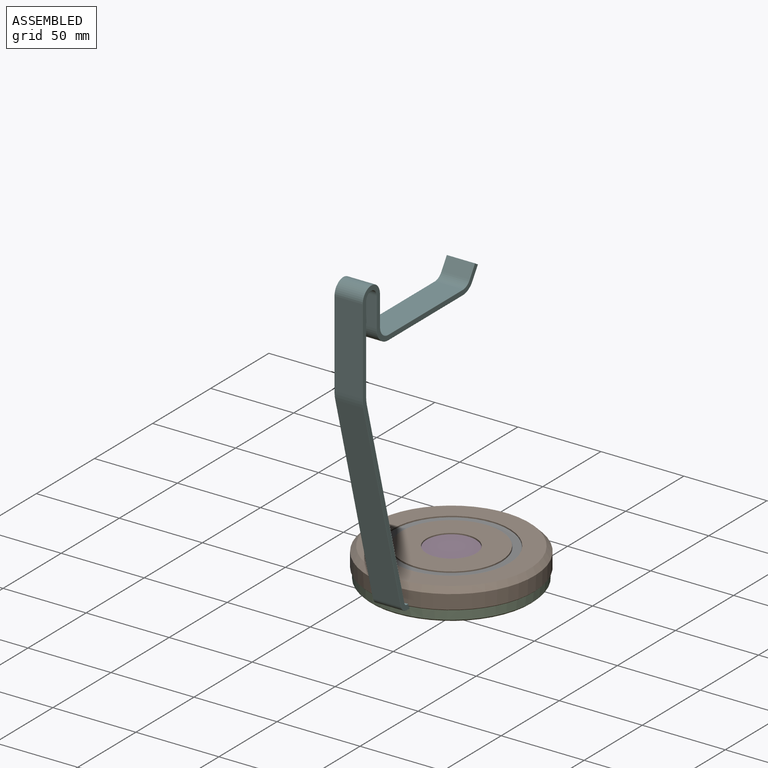
[diagram: assembled view]
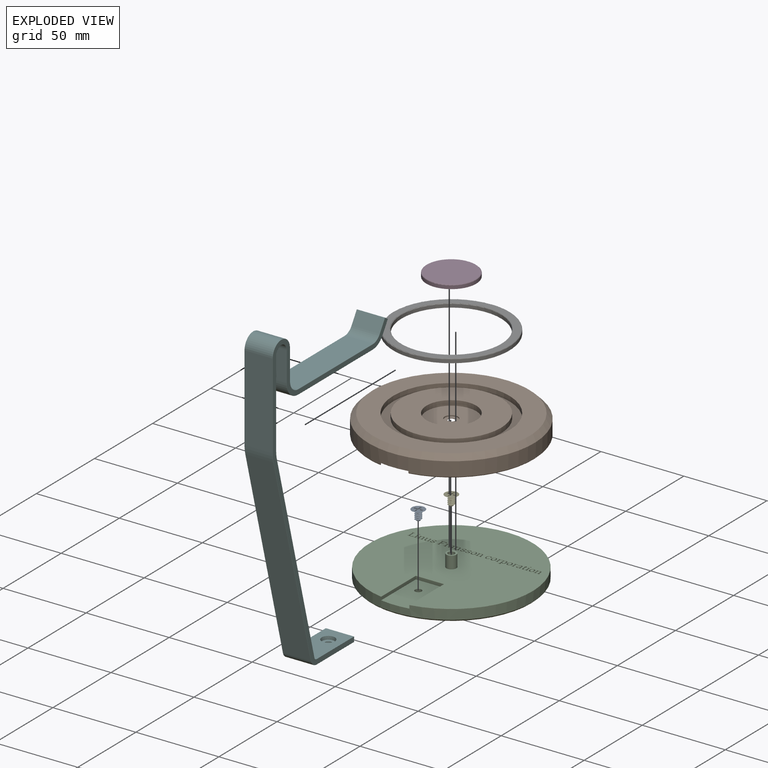
[diagram: exploded view]
GUIDED TOUR — MATED ASSEMBLY (Onshape document f17010e8f5130e023b31298c, AutoMate assembly f17010e8f5130e023b31298c_334e94c1dd902689a71845d5_8bb559356ea33c52fdeffb73_default)

This assembly has 7 components, labeled P0..P6 below (a component is one placed occurrence of a part; the same part can appear more than once), held together by 6 mates. A mate is a constraint between two components; its type names the relative motion it leaves free:
  FASTENED — locks the two components together rigidly (no relative motion).
Axis/direction vectors are unit vectors and 'through' points are millimeter coordinates, both in the assembly's world frame.

MATES
  1. FASTENED "Fastened 3": P2 <-> P1, direction (0.000, 0.000, -1.000) through (0.00, 0.00, 14.50) mm
  2. FASTENED "Fastened 1": P5 <-> P2, direction (0.000, 0.000, -1.000) through (0.00, -28.43, 5.00) mm
  3. FASTENED "Fastened 2": P1 <-> P6, direction (0.000, 0.000, 1.000) through (0.00, 0.00, 15.50) mm
  4. FASTENED "Fastened 6": P4 <-> P2, direction (0.000, 0.000, -1.000) through (0.00, 0.00, 9.50) mm
  5. FASTENED "Fastened 5": P0 <-> P2, direction (0.000, 0.000, -1.000) through (0.00, -28.43, 2.00) mm
  6. FASTENED "Fastened 4": P1 <-> P3, direction (0.000, 0.000, 1.000) through (0.00, 0.00, 15.50) mm

ASSEMBLY ORDER
  1. P2 — the base component [order verified]
  2. P0 [order verified]
  3. P4 [order verified]
  4. P1 [order verified]
  5. P6 [order verified]
  6. P3 [order verified]
  7. P5 [order verified]
(P0, P3, P4, P6 verified with a relaxed clearance tolerance: the source model stores slight part interference there.)
Order-tag legend:
  [order verified] — this step's position reverses a verified removal order: the component was checked to insert without passing through the ones already placed.

Of the 7 components, 1 carries the full construction recipe — the FeatureScript program that regenerates the part's solid from scratch; the rest are supplied as boundary geometry only.
Each toured component is shown spotlighted twice — in the assembled view, then in the exploded view, where a leader line traces a displaced component back to its assembled socket (saturated green if recipe-attached, orange if geometry-only; every other component desaturated gray) — followed by its recipe or geometry summary and the mates that hold it.
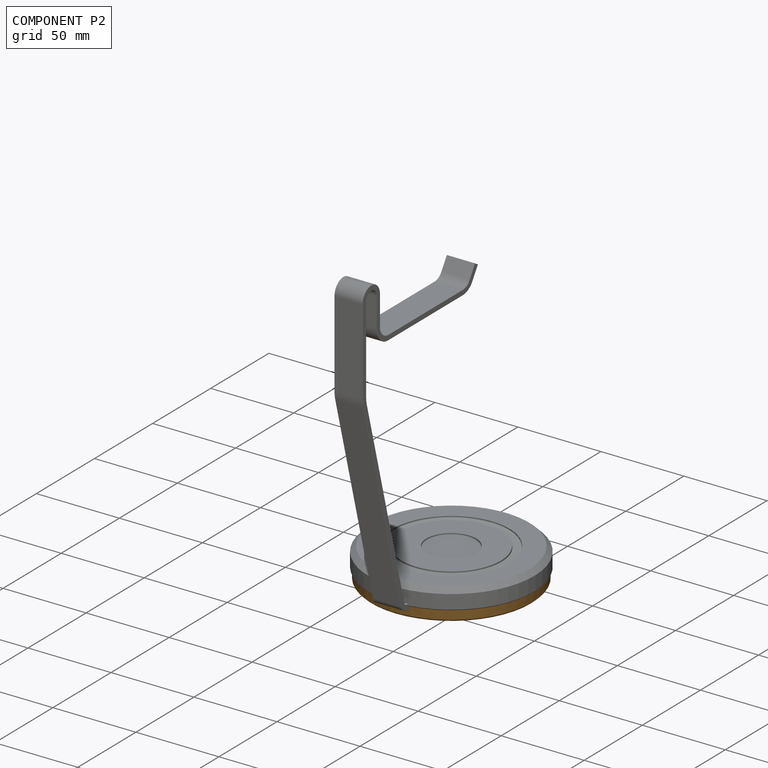
[diagram: component P2 — assembled]
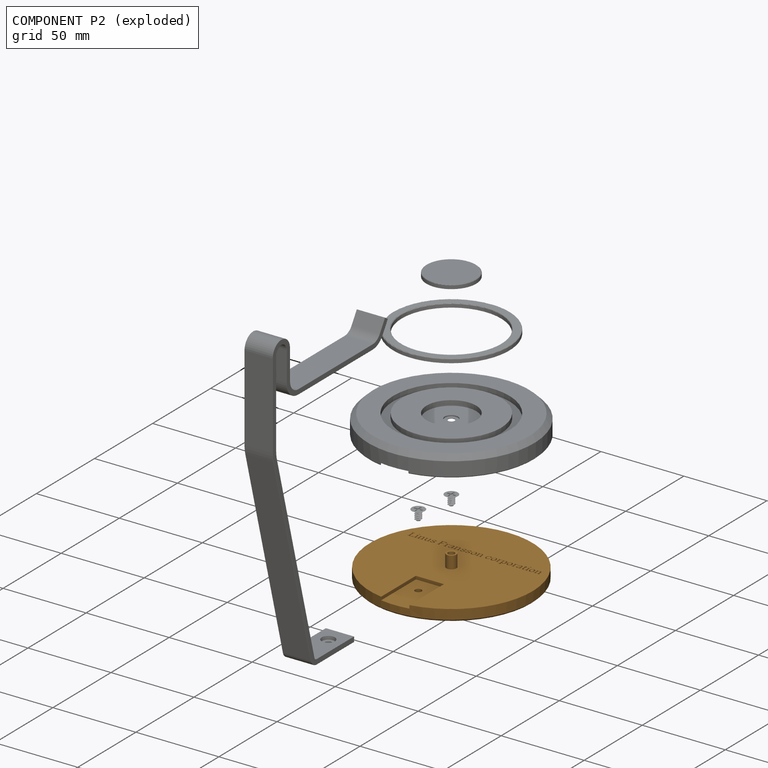
[diagram: component P2 — exploded]
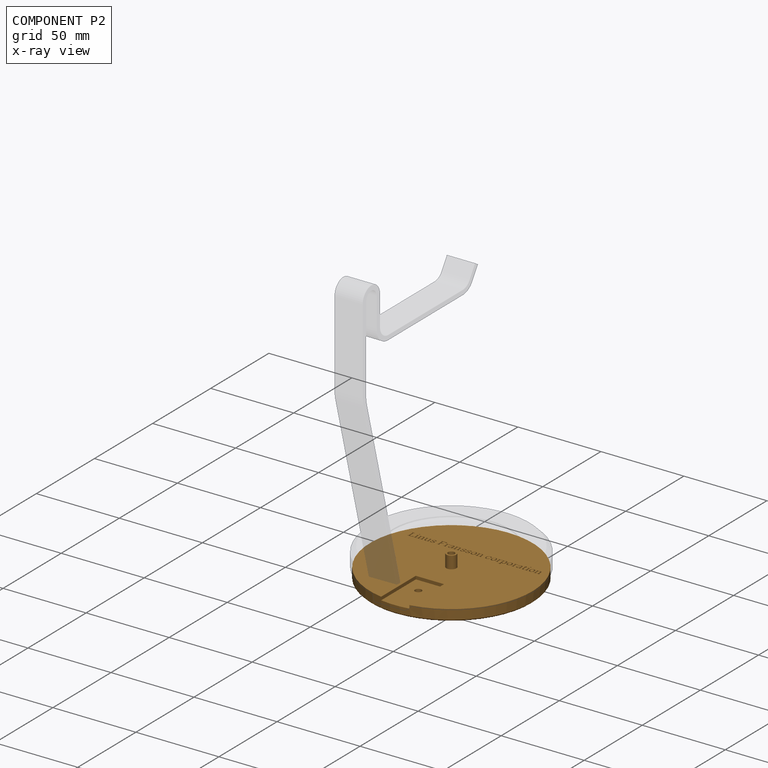
[diagram: component P2 — x-ray view]
COMPONENT P2 — geometry summary (no construction recipe available for this part):
  bounding box: 106.1 x 105.3 x 14.5 mm
  B-rep topology: 1 solid, 1108 faces, 5408 edges
  volume: 51593 mm^3 (32% of its bounding box)
Held by: FASTENED mate "Fastened 3" to P1; FASTENED mate "Fastened 1" to P5; FASTENED mate "Fastened 6" to P4; FASTENED mate "Fastened 5" to P0.
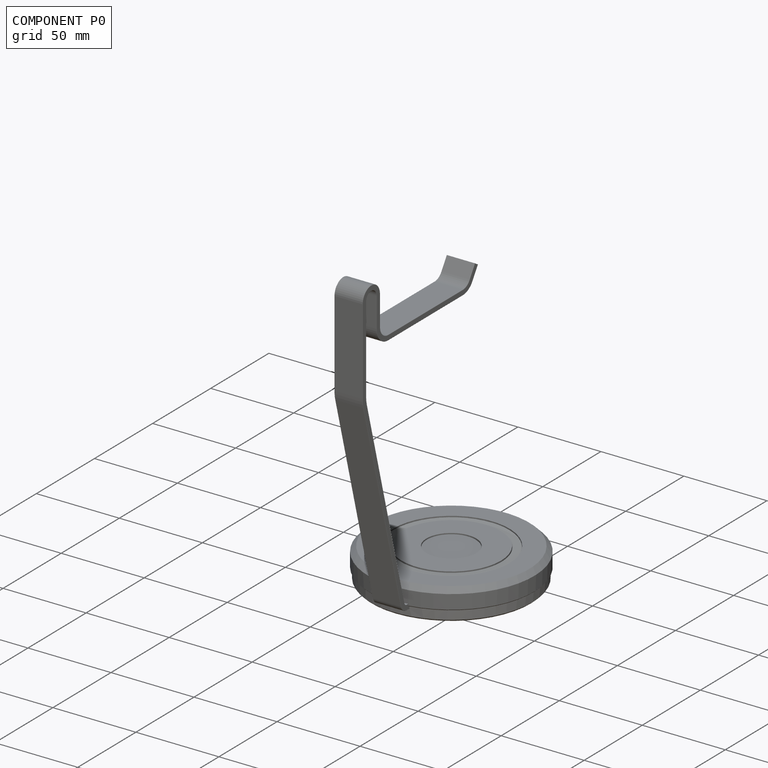
[diagram: component P0 — assembled]
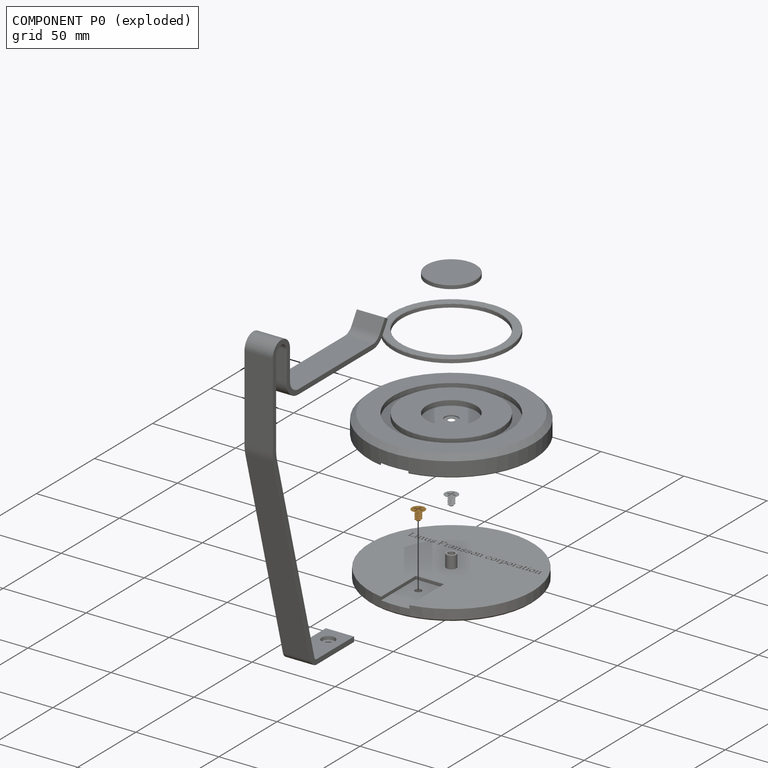
[diagram: component P0 — exploded]
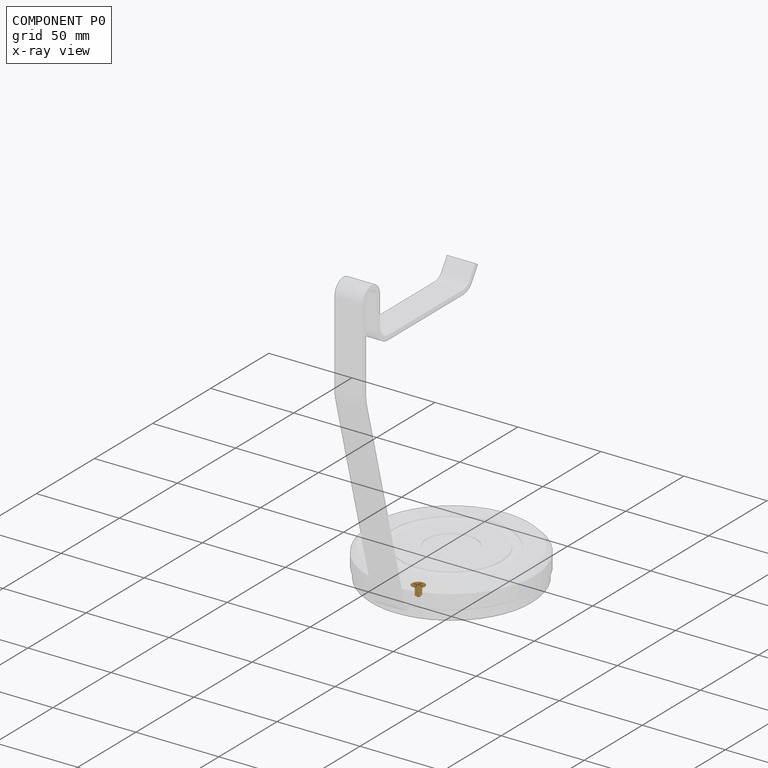
[diagram: component P0 — x-ray view]
COMPONENT P0 — geometry summary (no construction recipe available for this part):
  bounding box: 7.8 x 7.8 x 6.0 mm
  B-rep topology: 1 solid, 27 faces, 142 edges
  volume: 58 mm^3 (16% of its bounding box)
Held by: FASTENED mate "Fastened 5" to P2.
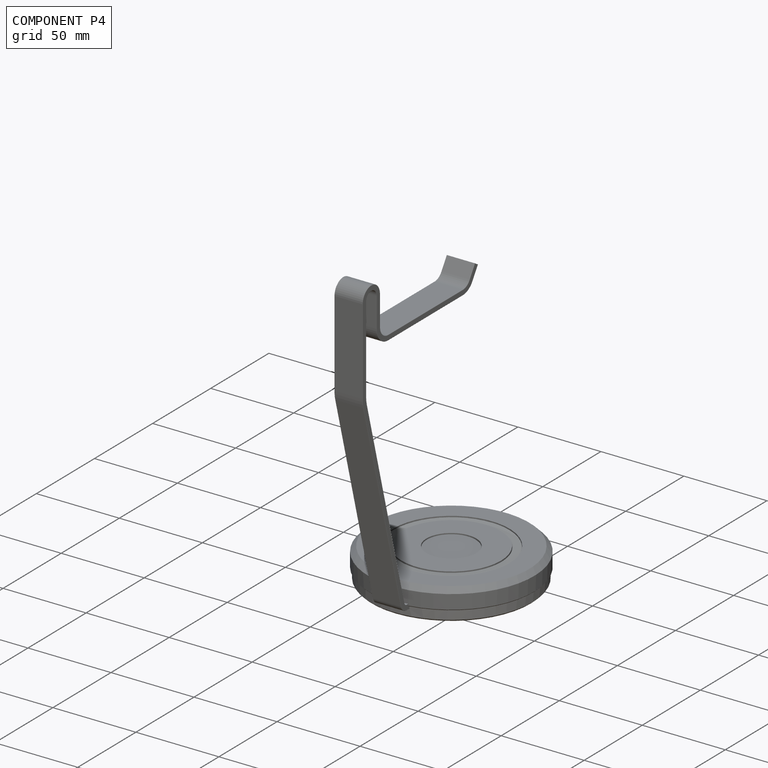
[diagram: component P4 — assembled]
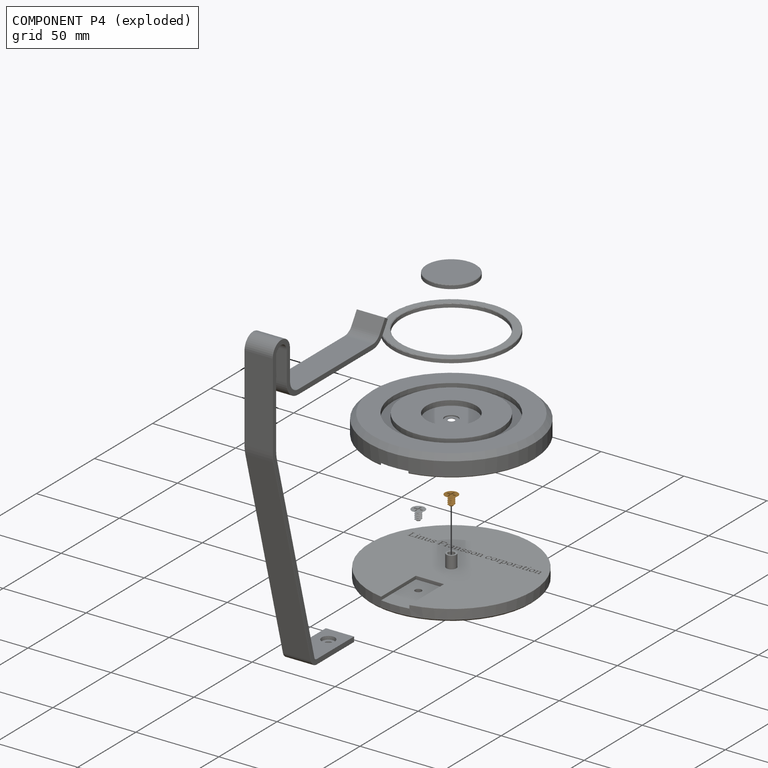
[diagram: component P4 — exploded]
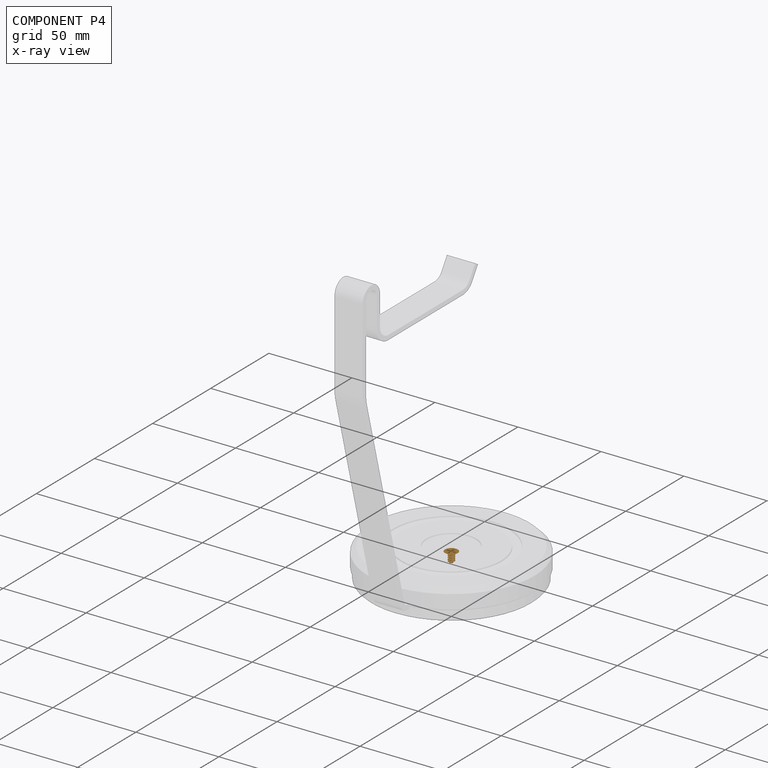
[diagram: component P4 — x-ray view]
COMPONENT P4 — geometry summary (no construction recipe available for this part):
  bounding box: 7.8 x 7.8 x 6.0 mm
  B-rep topology: 1 solid, 27 faces, 142 edges
  volume: 58 mm^3 (16% of its bounding box)
Held by: FASTENED mate "Fastened 6" to P2.
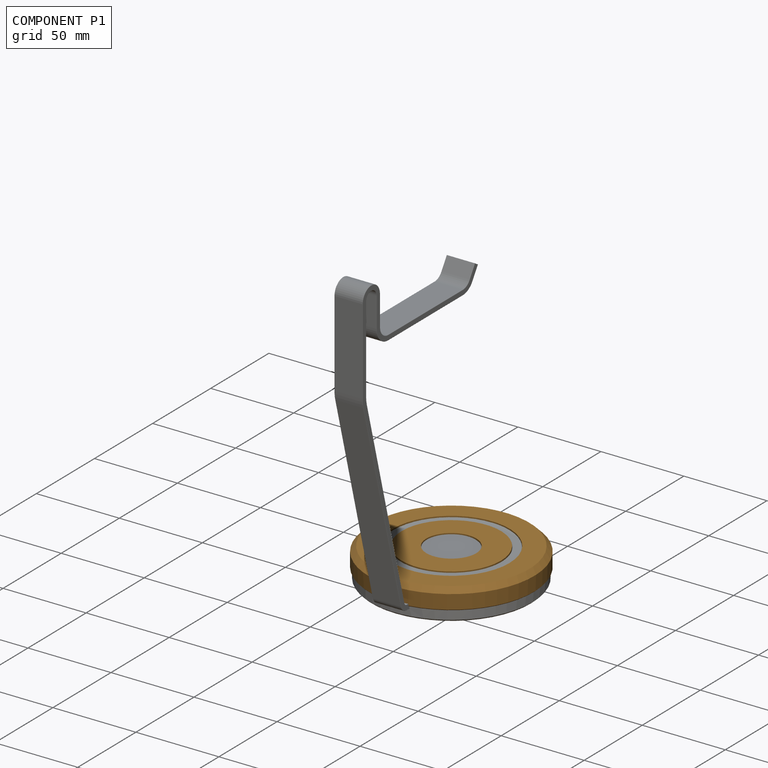
[diagram: component P1 — assembled]
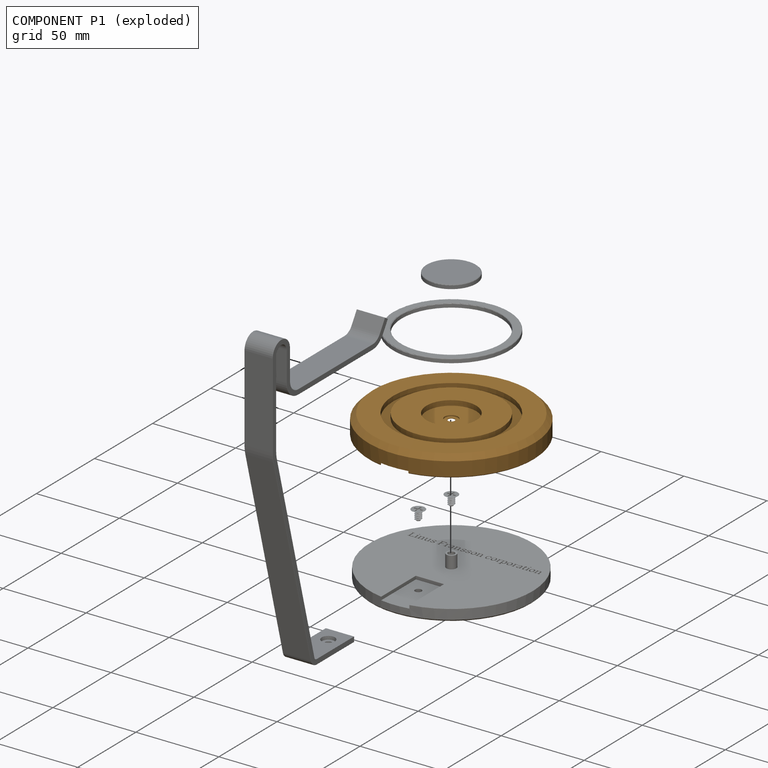
[diagram: component P1 — exploded]
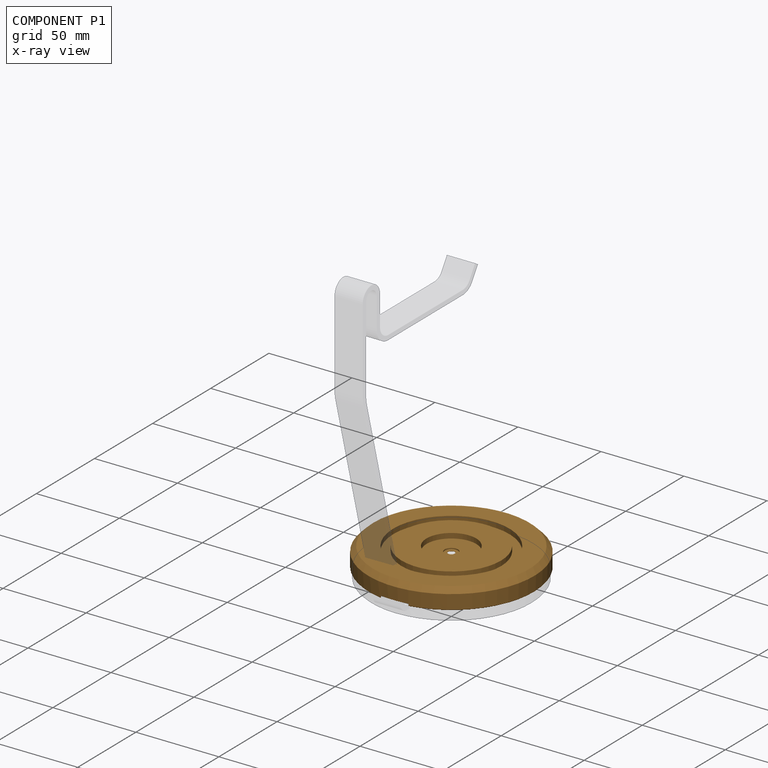
[diagram: component P1 — x-ray view]
COMPONENT P1 — geometry summary (no construction recipe available for this part):
  bounding box: 100.0 x 100.0 x 12.0 mm
  B-rep topology: 1 solid, 26 faces, 100 edges
  volume: 12188 mm^3 (10% of its bounding box)
  symmetry: 6-fold rotationally symmetric about the z axis; mirror-symmetric across its x mid-plane, y mid-plane
Held by: FASTENED mate "Fastened 3" to P2; FASTENED mate "Fastened 2" to P6; FASTENED mate "Fastened 4" to P3.
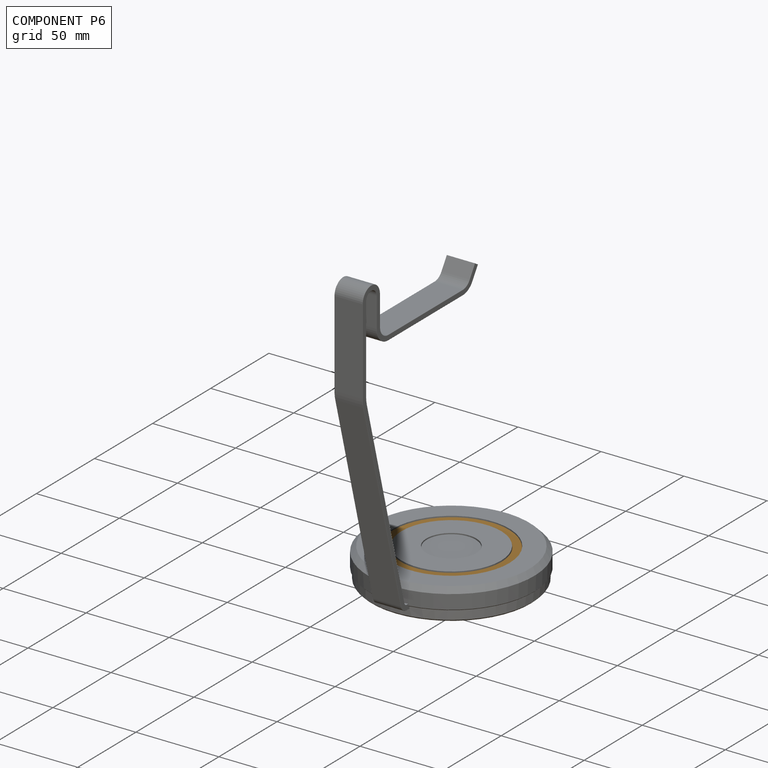
[diagram: component P6 — assembled]
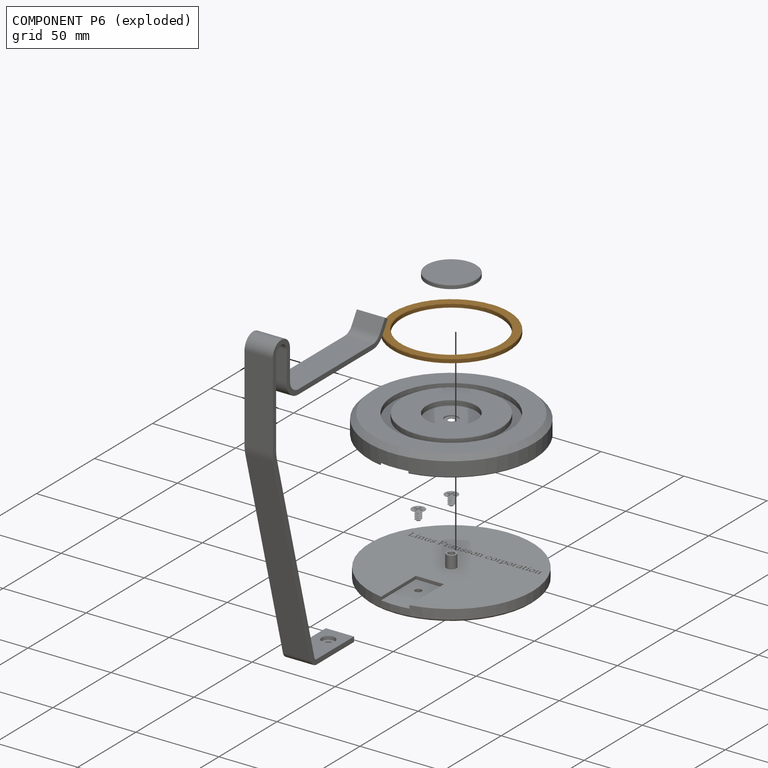
[diagram: component P6 — exploded]
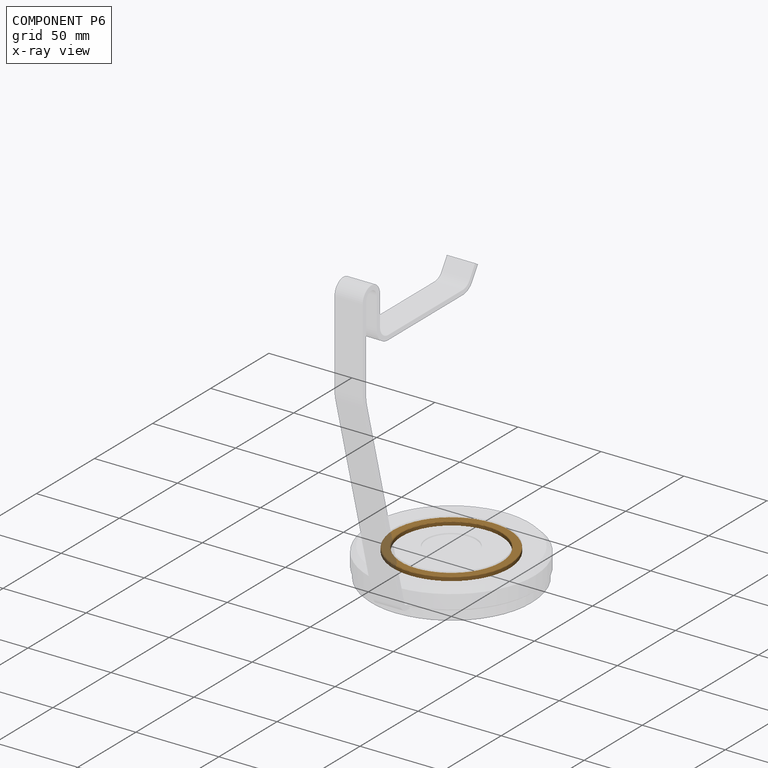
[diagram: component P6 — x-ray view]
COMPONENT P6 — geometry summary (no construction recipe available for this part):
  bounding box: 75.8 x 75.8 x 2.5 mm
  B-rep topology: 1 solid, 6 faces, 20 edges
  volume: 2531 mm^3 (18% of its bounding box)
  symmetry: 2-fold rotationally symmetric about the x axis; 2-fold rotationally symmetric about the y axis; revolution-symmetric about the z axis through its bounding-box center; mirror-symmetric across its x mid-plane, y mid-plane, z mid-plane
Held by: FASTENED mate "Fastened 2" to P1.
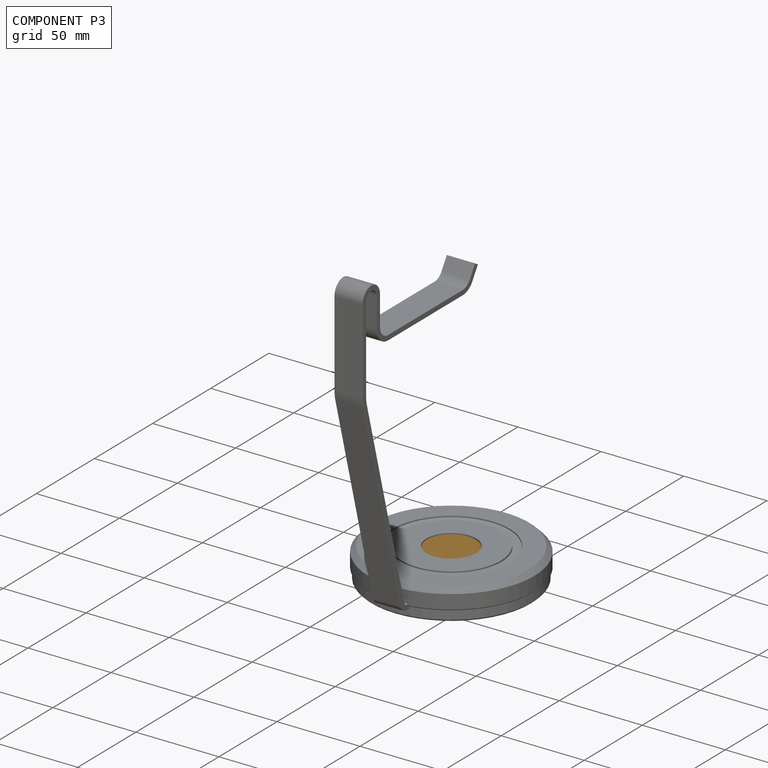
[diagram: component P3 — assembled]
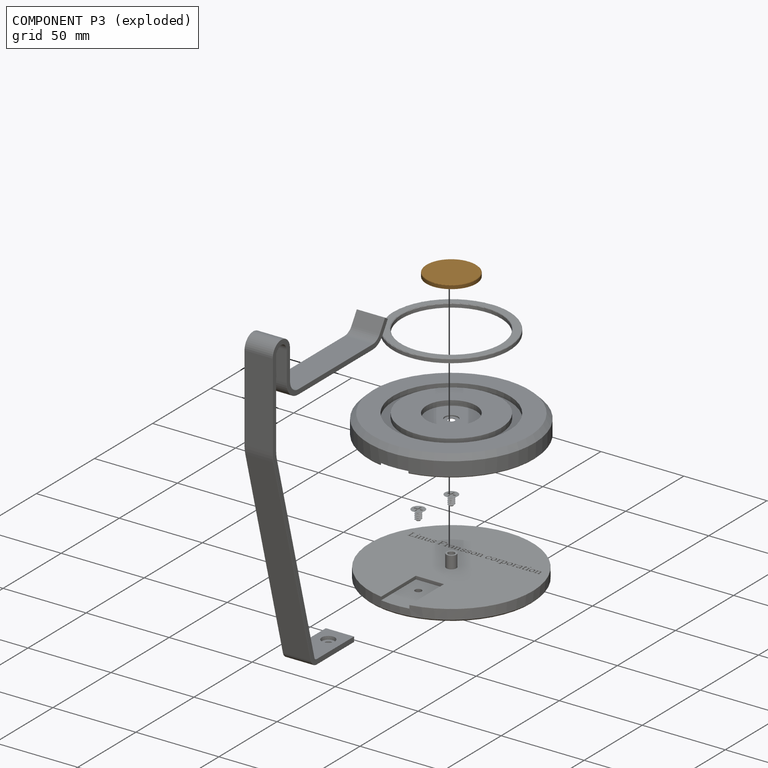
[diagram: component P3 — exploded]
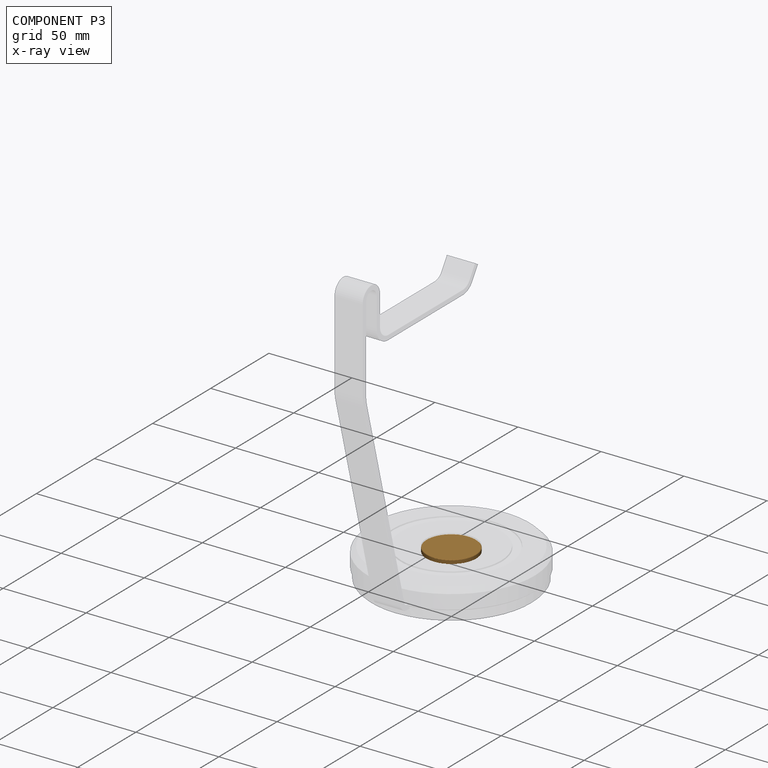
[diagram: component P3 — x-ray view]
COMPONENT P3 — geometry summary (no construction recipe available for this part):
  bounding box: 32.5 x 32.5 x 2.5 mm
  B-rep topology: 1 solid, 4 faces, 10 edges
  volume: 1762 mm^3 (67% of its bounding box)
  symmetry: revolution-symmetric about the z axis through its bounding-box center; mirror-symmetric across its x mid-plane, y mid-plane
Held by: FASTENED mate "Fastened 4" to P1.
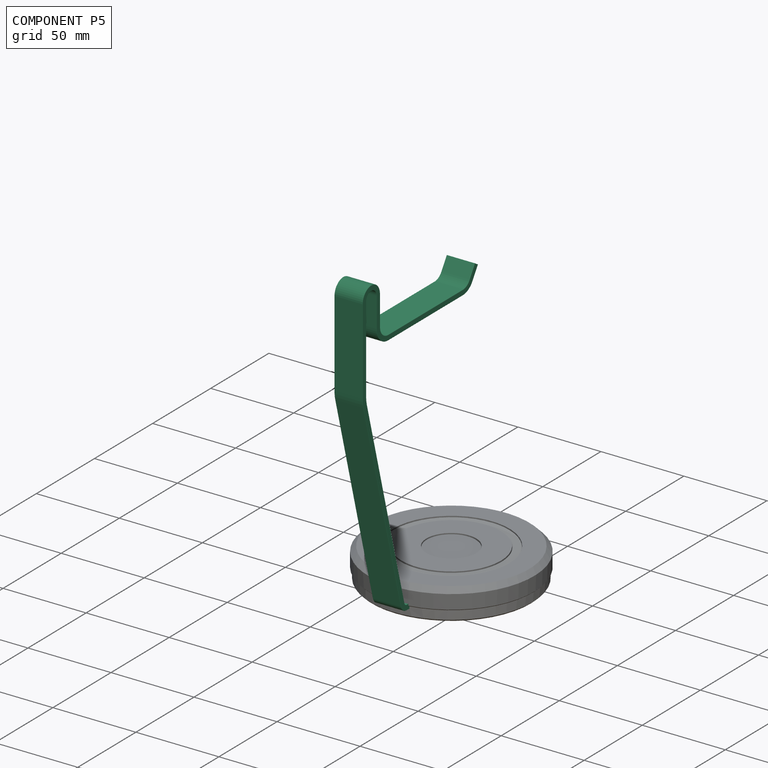
[diagram: component P5 — assembled]
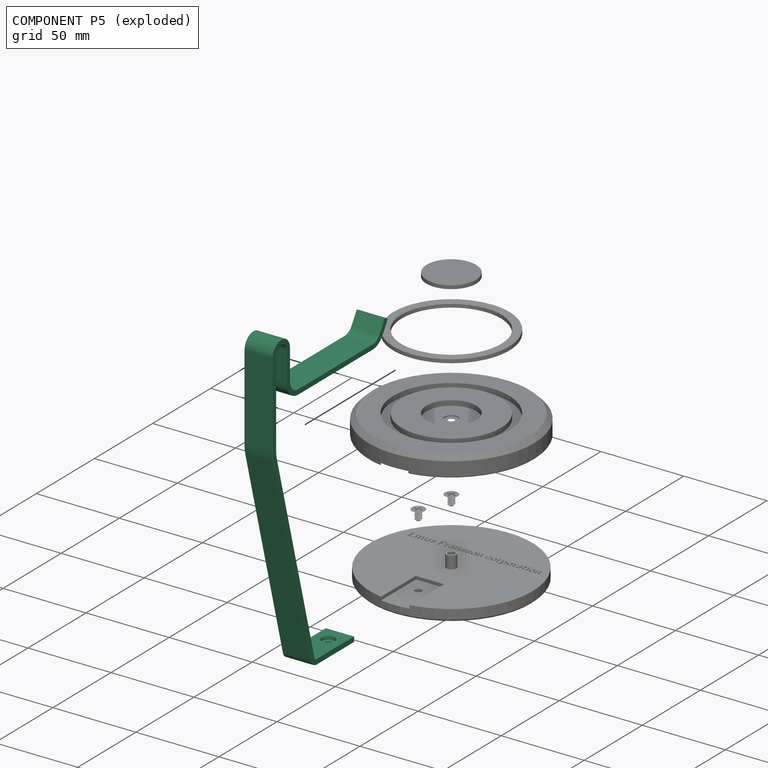
[diagram: component P5 — exploded]
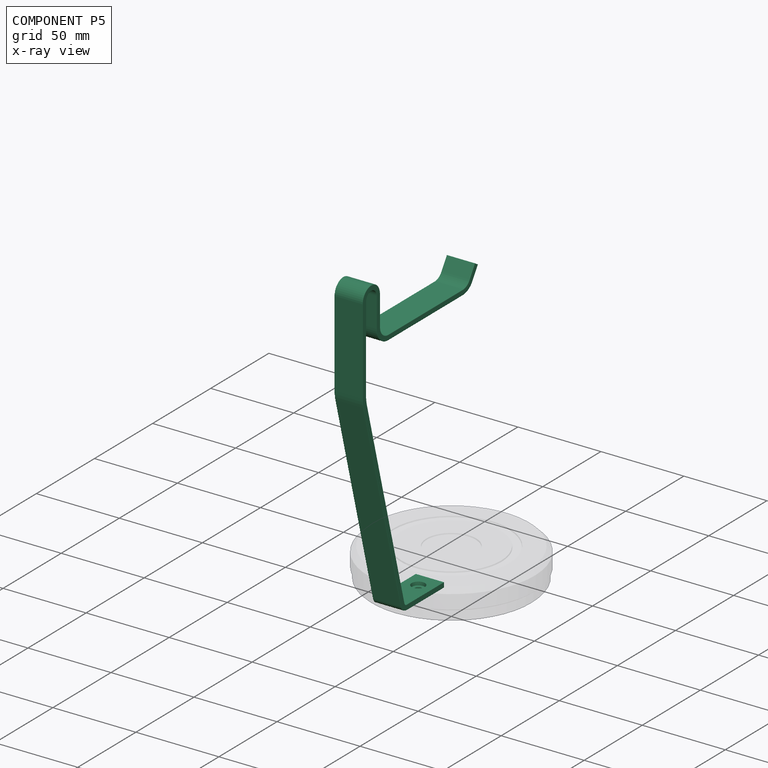
[diagram: component P5 — x-ray view]
COMPONENT P5 — recipe-attached (CADFS 00171755, mesh-verified: the recipe's output STEP matches this component's geometry to below the mesh-comparison resolution (tessellation chordal tolerance ~0.32 mm)).
Held by: FASTENED mate "Fastened 1" to P2.
Construction recipe (FeatureScript — the CAD program that rebuilds this solid; sketch coordinates are in the units given by the * unit suffixes, e.g. mm):

FeatureScript 1511;
import(path : "onshape/std/geometry.fs", version : "1511.0");
import(path : "onshape/std/common.fs", version : "1511.0");
const mm = millimeter;
const VERTEX = EntityType.VERTEX;
const EDGE = EntityType.EDGE;
const FACE = EntityType.FACE;
const BODY = EntityType.BODY;
function v(x, y){return vector(x, y);}
function OD(order){return orderDisambiguation(order);}
function OSD(set){return originalSetDisambiguation(set);}
function TD(topology){return topologyDisambiguation(topology);}
function TDD(query){return trueDependencyDisambiguation(query);}
function sQuery(a, b, c) {return sketchEntityQuery(a, b, c);}

annotation { "Feature Type Name" : "Feature", "Feature Type Description" : "" }
export const myFeature = defineFeature(function(context is Context, id is Id, definition is map)
    precondition{}
    {
        {
            var Q0;
            Q0=qCreatedBy(makeId("Front.planeOp"),FACE);
            var sketch = newSketch(context, id + "F0", { "sketchPlane" : qUnion([Q0])});
            skLineSegment(sketch, "E0", {"start": v(-77.45, -70.7) * mm, "end": v(-45.28, -70.7) * mm});
            skLineSegment(sketch, "E1", {"start": v(-40.46, -67) * mm, "end": v(-8.1, 53.55) * mm});
            skLineSegment(sketch, "E2", {"start": v(-7.41, 58.74) * mm, "end": v(-7.41, 110.3) * mm});
            skLineSegment(sketch, "E3", {"start": v(-7.41, 110.3) * mm, "end": v(-10.41, 110.3) * mm});
            skLineSegment(sketch, "E4", {"start": v(-22.41, 110.3) * mm, "end": v(-22.41, 92.3) * mm});
            skLineSegment(sketch, "E5", {"start": v(-29.41, 85.3) * mm, "end": v(-93.57, 85.3) * mm});
            skPoint(sketch, "E6.visualSharp", {"position": v(-41.45, -70.7) * mm});
            skArc(sketch, "E6.filletArc", {"start": v(-45.28, -70.7) * mm, "mid": v(-42.24, -69.68) * mm, "end": v(-40.46, -67) * mm});
            skArc(sketch, "E7", {"start": v(-7.41, 110.3) * mm, "mid": v(-14.91, 117.8) * mm, "end": v(-22.41, 110.3) * mm});
            skPoint(sketch, "E8.visualSharp", {"position": v(-7.41, 56.1) * mm});
            skArc(sketch, "E8.filletArc", {"start": v(-8.1, 53.55) * mm, "mid": v(-7.59, 56.12) * mm, "end": v(-7.41, 58.74) * mm});
            skPoint(sketch, "E9.visualSharp", {"position": v(-22.41, 85.3) * mm});
            skArc(sketch, "E9.filletArc", {"start": v(-29.41, 85.3) * mm, "mid": v(-24.46, 87.34) * mm, "end": v(-22.41, 92.3) * mm});
            skLineSegment(sketch, "E10", {"start": v(-99.48, 88.53) * mm, "end": v(-104.06, 95.74) * mm});
            skPoint(sketch, "E11.visualSharp", {"position": v(-97.41, 85.3) * mm});
            skArc(sketch, "E11.filletArc", {"start": v(-99.48, 88.53) * mm, "mid": v(-96.94, 86.15) * mm, "end": v(-93.57, 85.3) * mm});
            skLineSegment(sketch, "E12", {"start": v(-77.45, -70.7) * mm, "end": v(-77.45, -67.7) * mm});
            skLineSegment(sketch, "E13", {"start": v(-77.45, -67.7) * mm, "end": v(-45.28, -67.7) * mm});
            skLineSegment(sketch, "E14", {"start": v(-43.35, -66.23) * mm, "end": v(-11.1, 53.95) * mm});
            skLineSegment(sketch, "E15", {"start": v(-10.41, 59.13) * mm, "end": v(-10.41, 111.1) * mm});
            skLineSegment(sketch, "E16", {"start": v(-19.41, 92.3) * mm, "end": v(-19.41, 110.3) * mm});
            skArc(sketch, "E17", {"start": v(-10.41, 111.1) * mm, "mid": v(-15.28, 114.8) * mm, "end": v(-19.41, 110.3) * mm});
            skLineSegment(sketch, "E18", {"start": v(-93.57, 82.3) * mm, "end": v(-29.41, 82.3) * mm});
            skArc(sketch, "E19", {"start": v(-29.41, 82.3) * mm, "mid": v(-22.34, 85.22) * mm, "end": v(-19.41, 92.3) * mm});
            skLineSegment(sketch, "E20", {"start": v(-104.06, 95.74) * mm, "end": v(-106.6, 94.13) * mm});
            skLineSegment(sketch, "E21", {"start": v(-106.6, 94.13) * mm, "end": v(-101.98, 86.88) * mm});
            skArc(sketch, "E22", {"start": v(-101.98, 86.88) * mm, "mid": v(-98.36, 83.51) * mm, "end": v(-93.57, 82.3) * mm});
            skPoint(sketch, "E23.visualSharp", {"position": v(-10.41, 56.5) * mm});
            skArc(sketch, "E23.filletArc", {"start": v(-11.1, 53.95) * mm, "mid": v(-10.59, 56.52) * mm, "end": v(-10.41, 59.13) * mm});
            skPoint(sketch, "E24.visualSharp", {"position": v(-43.75, -67.7) * mm});
            skArc(sketch, "E24.filletArc", {"start": v(-45.28, -67.7) * mm, "mid": v(-44.07, -67.3) * mm, "end": v(-43.35, -66.23) * mm});
            skLineSegment(sketch, "E25.trimOffspring", {"start": v(-19.41, 110.3) * mm, "end": v(-22.41, 110.3) * mm});
            skSolve(sketch);
        }
        {
            var Q0;
            Q0=makeQuery(id+"F0.imprint","IMPRINT",FACE,{"disambiguationData":[TD([[makeQuery(id+"F0.imprint","IMPRINT",EDGE,{"derivedFrom":sQuery(id+"F0.wireOp",EDGE,"E0")}),1.0]])]});
            var Q1;
            {var subQ2=sQuery(id+"F0.wireOp",EDGE,"E3");Q1=makeQuery(id+"F0.imprint","IMPRINT",FACE,{"disambiguationData":[TD([[makeQuery(id+"F0.imprint","IMPRINT",EDGE,{"derivedFrom":subQ2}),-1.0]])]});}
            var Q2;
            Q2=makeQuery(id+"F0.imprint","IMPRINT",FACE,{"disambiguationData":[TD([[makeQuery(id+"F0.imprint","IMPRINT",EDGE,{"derivedFrom":sQuery(id+"F0.wireOp",EDGE,"E4")}),1.0]])]});
            extrude(context, id + "F1", {"entities" : qUnion([Q0, Q1, Q2]), "depth" : 17 * mm});
        }
        {
            var Q0;
            Q0=makeQuery(id+"F1.opExtrude","SWEPT_FACE",FACE,{"disambiguationData":[OSD([sQuery(id+"F0.wireOp",EDGE,"E13")])]});
            var sketch = newSketch(context, id + "F2", { "sketchPlane" : qUnion([Q0])});
            skLineSegment(sketch, "E26", {"start": v(-77.45, -8.5) * mm, "end": v(-67.45, -8.5) * mm, "construction": true});
            skCircle(sketch, "E27", {"center": v(-67.45, -8.5) * mm, "radius": 2 * mm});
            skSolve(sketch);
        }
        {
            var Q0;
            Q0 = qSketchRegion(id + "F2", true);
            extrude(context, id + "F3", {"entities" : qUnion([Q0]), "operationType" : NewBodyOperationType.REMOVE, "endBound" : BoundingType.THROUGH_ALL, "oppositeDirection" : true, "depth" : 25 * mm});
        }
        {
            var Q0;
            Q0=makeQuery(id+"F1.opExtrude","SWEPT_FACE",FACE,{"disambiguationData":[OSD([sQuery(id+"F0.wireOp",EDGE,"E13")])]});
            var sketch = newSketch(context, id + "F4", { "sketchPlane" : qUnion([Q0])});
            skCircle(sketch, "E28", {"center": v(-67.45, -8.5) * mm, "radius": 4 * mm});
            skSolve(sketch);
        }
        {
            var Q0;
            Q0 = qSketchRegion(id + "F4", true);
            extrude(context, id + "F5", {"entities" : qUnion([Q0]), "operationType" : NewBodyOperationType.REMOVE, "oppositeDirection" : true, "depth" : 2 * mm, "hasDraft" : true, "draftAngle" : 5 * degree, "draftPullDirection" : true});
        }
        {
            var Q0;
            Q0=makeQuery(id+"F1.opExtrude","SWEPT_EDGE",EDGE,{"disambiguationData":[OSD([sQuery(id+"F0.wireOp",EDGE,"E10"),sQuery(id+"F0.wireOp",EDGE,"E20")])]});
            var Q1;
            Q1=makeQuery(id+"F1.opExtrude","SWEPT_EDGE",EDGE,{"disambiguationData":[OSD([sQuery(id+"F0.wireOp",EDGE,"E20"),sQuery(id+"F0.wireOp",EDGE,"E21")])]});
            var Q2;
            Q2=makeQuery(id+"F1.opExtrude","CAP_EDGE",EDGE,{"disambiguationData":[OSD([sQuery(id+"F0.wireOp",EDGE,"E21")])],"isStart":false});
            var Q3;
            Q3=makeQuery(id+"F1.opExtrude","CAP_EDGE",EDGE,{"disambiguationData":[OSD([sQuery(id+"F0.wireOp",EDGE,"E10")])],"isStart":false});
            var Q4;
            Q4=makeQuery(id+"F1.opExtrude","CAP_EDGE",EDGE,{"disambiguationData":[OSD([sQuery(id+"F0.wireOp",EDGE,"E10")])],"isStart":true});
            var Q5;
            Q5=makeQuery(id+"F1.opExtrude","CAP_EDGE",EDGE,{"disambiguationData":[OSD([sQuery(id+"F0.wireOp",EDGE,"E20")])],"isStart":true});
            var Q6;
            Q6=makeQuery(id+"F1.opExtrude","CAP_EDGE",EDGE,{"disambiguationData":[OSD([sQuery(id+"F0.wireOp",EDGE,"E20")])],"isStart":false});
            var Q7;
            Q7=makeQuery(id+"F1.opExtrude","CAP_EDGE",EDGE,{"disambiguationData":[OSD([sQuery(id+"F0.wireOp",EDGE,"E22")])],"isStart":false});
            var Q8;
            Q8=makeQuery(id+"F1.opExtrude","CAP_EDGE",EDGE,{"disambiguationData":[OSD([sQuery(id+"F0.wireOp",EDGE,"E18")])],"isStart":false});
            var Q9;
            Q9=makeQuery(id+"F1.opExtrude","CAP_EDGE",EDGE,{"disambiguationData":[OSD([sQuery(id+"F0.wireOp",EDGE,"E18")])],"isStart":true});
            fillet(context, id + "F6", {"entities" : qUnion([Q0, Q1, Q2, Q3, Q4, Q5, Q6, Q7, Q8, Q9]), "radius" : 0.1 * mm, "tangentPropagation" : true, "allowEdgeOverflow" : false});
        }
    });
PROVENANCE & LICENSES
Assembly (occurrences, transforms, mates, per-part STEP geometry): AutoMate dataset, Zenodo record 7776208, CC0.
Construction recipes: CADFS (HuggingFace VladPyatov/CADFS, CC-BY-4.0, layered over the ABC dataset), FeatureScript reconstruction programs keyed by ABC model id.
Join: ABC meta listings map ABC model id -> Onshape documentId; within a shared document, parts are matched by geometric signature (bounding-box dims + volume at 0.1% relative tolerance, exact B-rep face/solid counts).
Verification: 1 of this assembly's 7 components carries a recipe attachment, and every attachment is mesh-verified: the CADFS STEP and the AutoMate member STEP were compared as meshes in their shared local frame (symmetric sampled-point-to-mesh distance); worst across the 1 attachment: below the mesh-comparison resolution (tessellation chordal tolerance ~0.32 mm) on a 214 mm part.
Renders: orthographic iso camera (az 35 / el 25); the floor grid conveys scale (grid pitch printed in each image; no ruler). In the exploded view each component is displaced by its stored offset vector: the offsets alone carry the explosion direction (mate normal/axis signs are not orientation cues and do not encode it), and separation distances are assigned per mate-chain, not proportionally to assembly-order depth.
